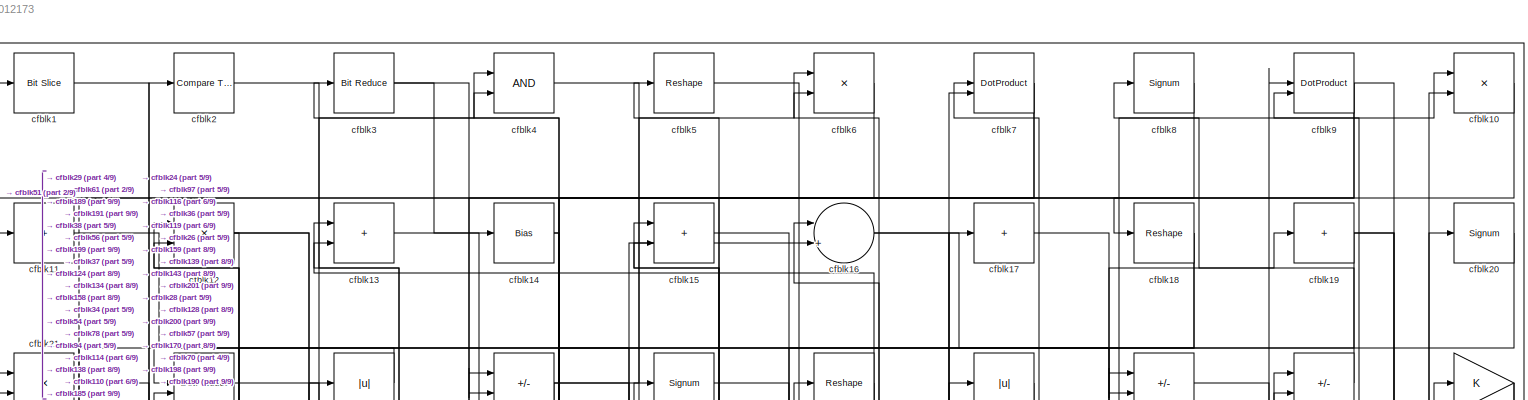
[diagram: root canvas - part 1/9, full width, top band]
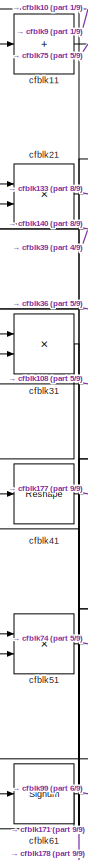
[diagram: root canvas - part 2/9, top left region]
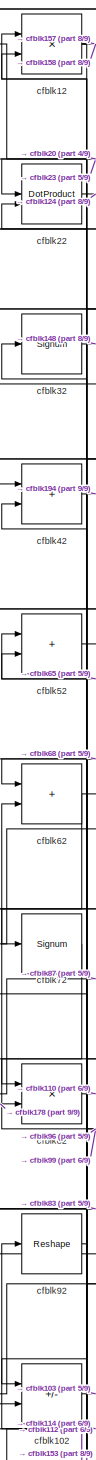
[diagram: root canvas - part 3/9, top left region]
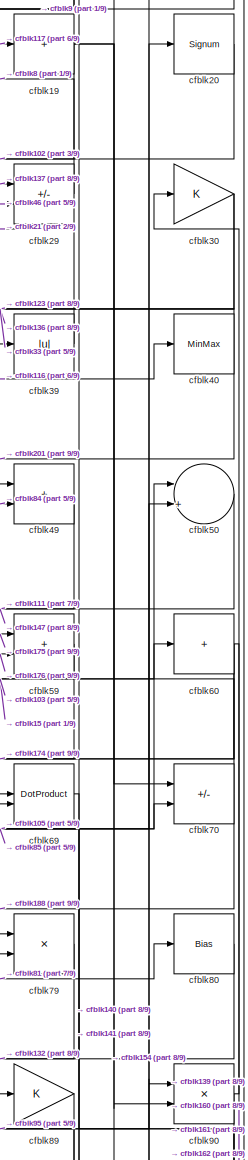
[diagram: root canvas - part 4/9, top right region]
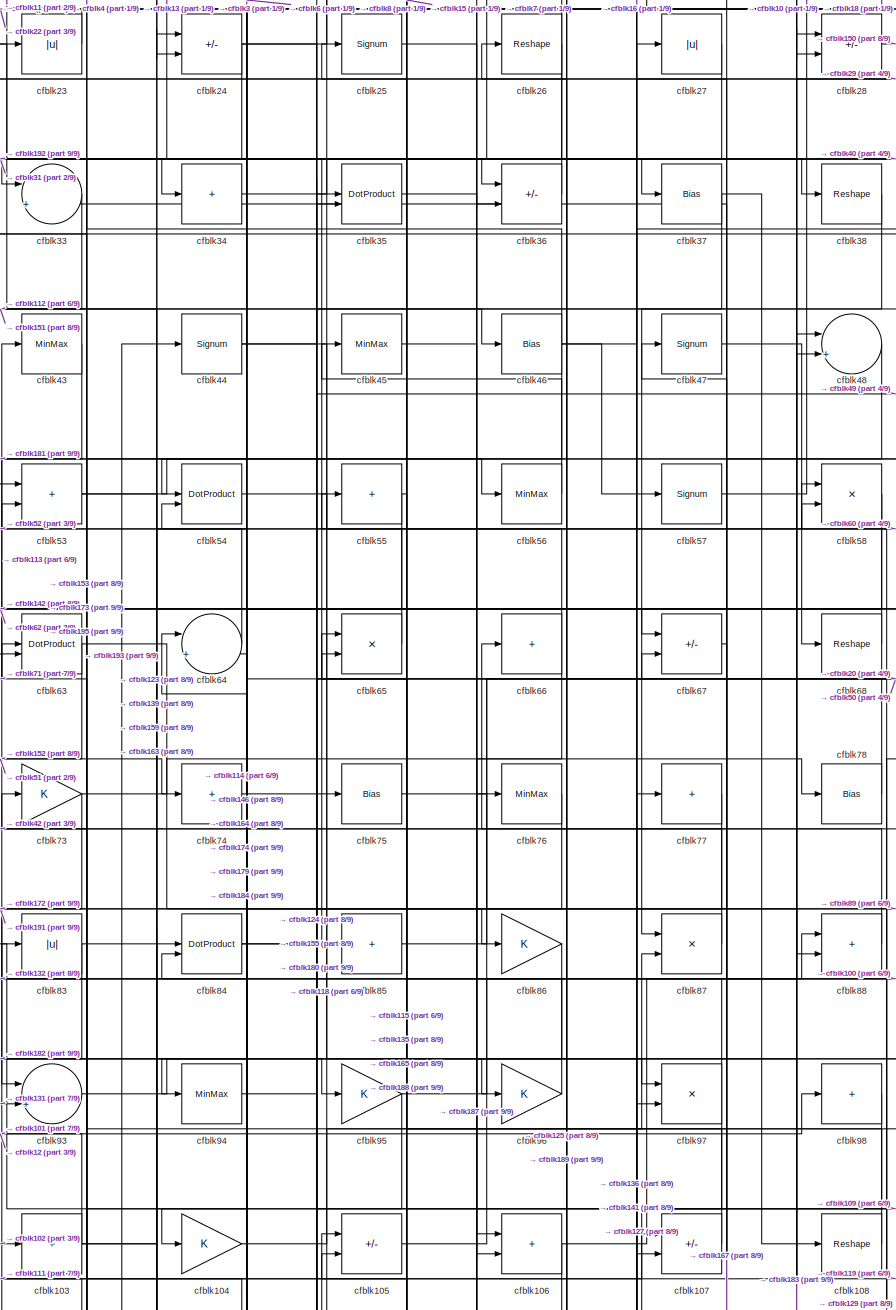
[diagram: root canvas - part 5/9, top center region]
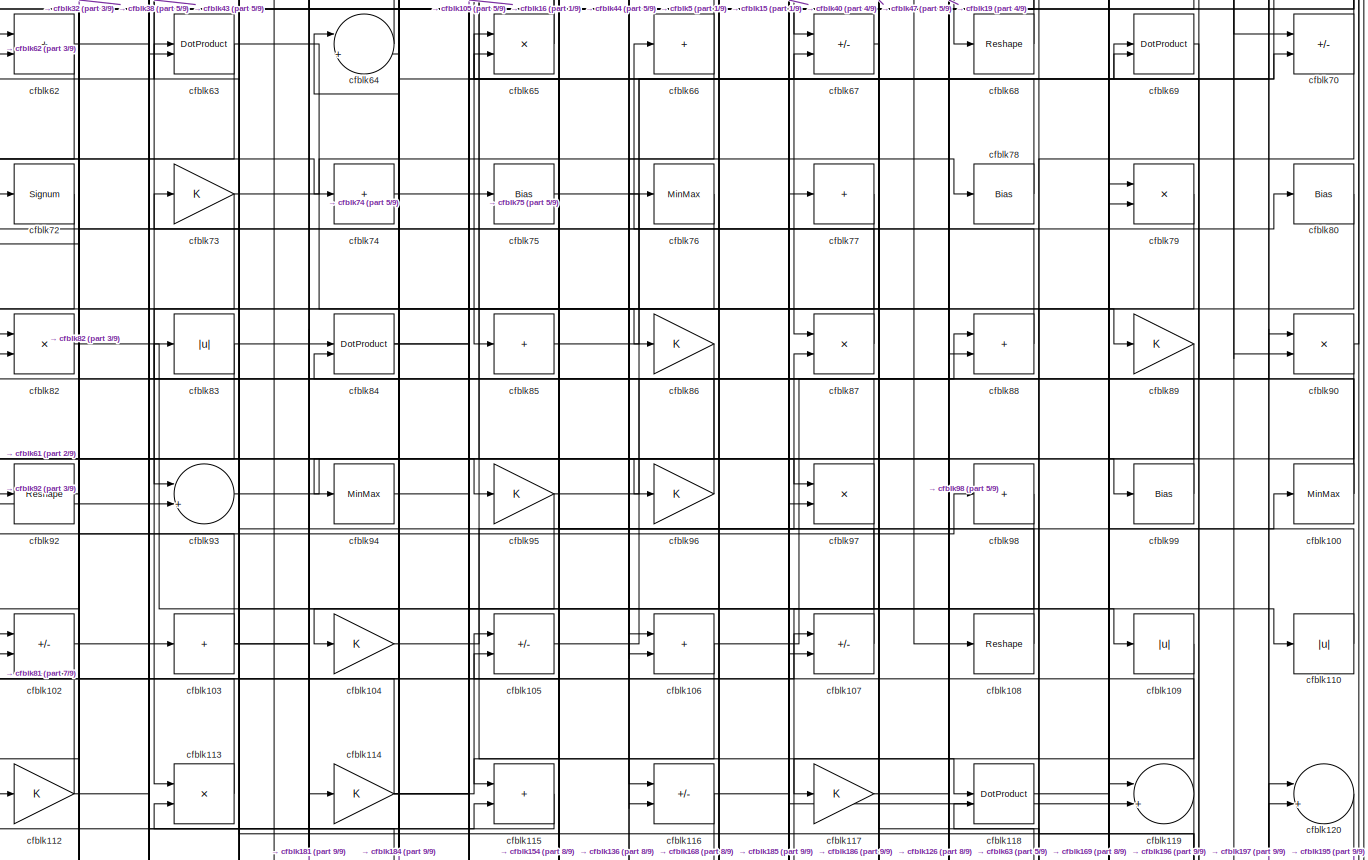
[diagram: root canvas - part 6/9, full width, middle band]
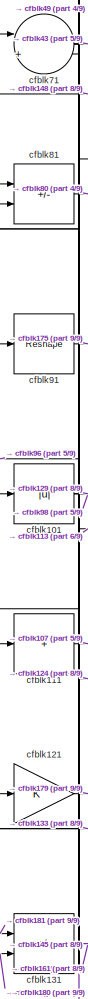
[diagram: root canvas - part 7/9, middle left region]
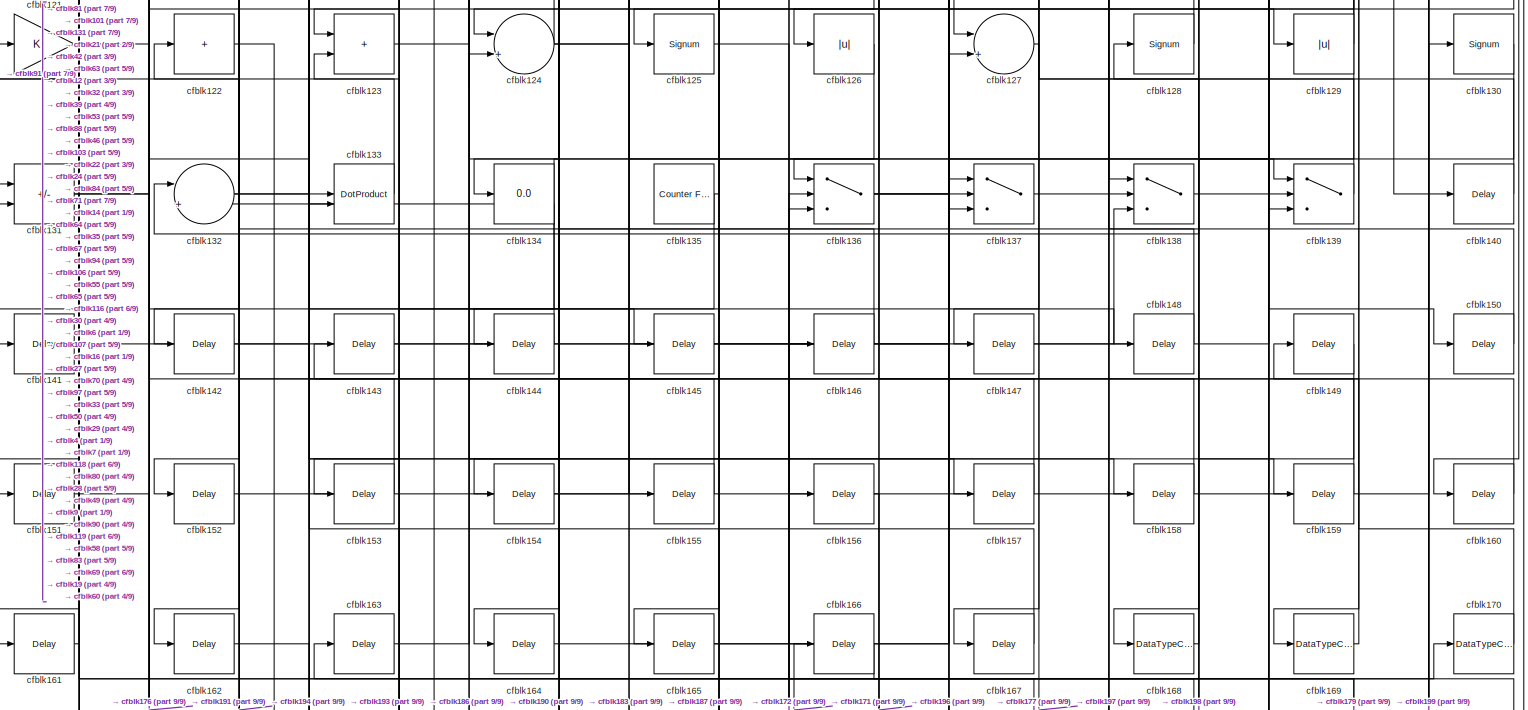
[diagram: root canvas - part 8/9, full width, bottom band]
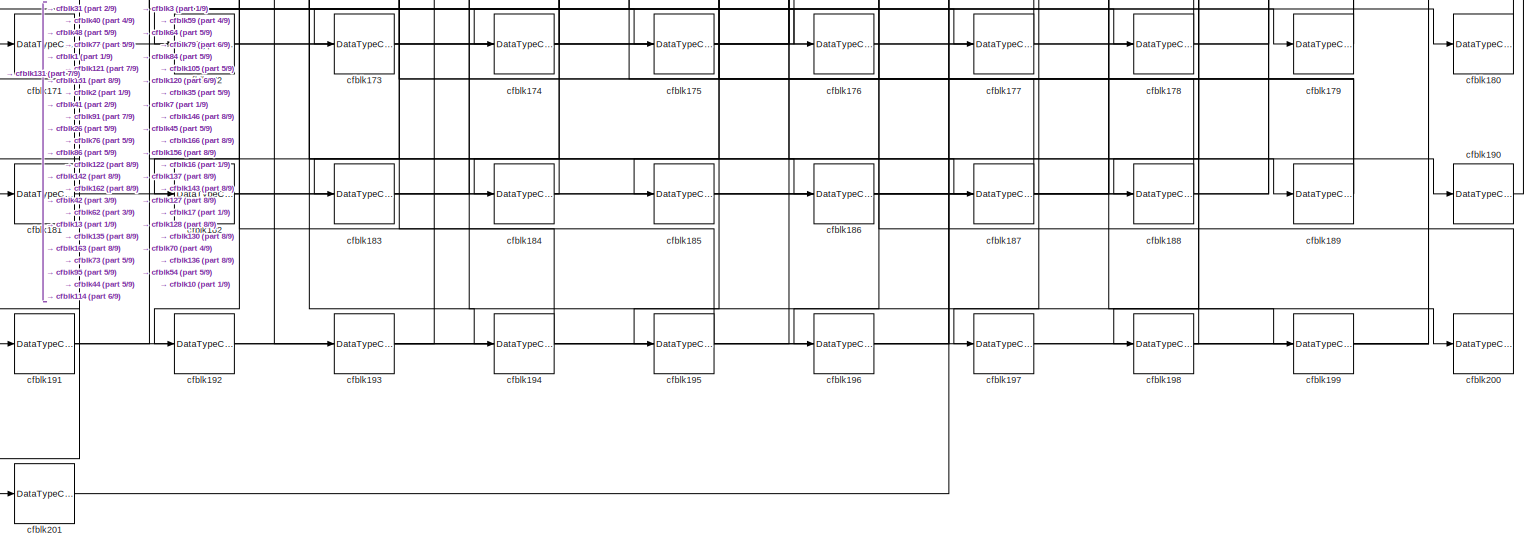
[diagram: root canvas - part 9/9, full width, bottom band]
MODEL slx_19f033012173
KIND model
CONFIG AbsTol = auto
CONFIG EnableMultiTasking = off
CONFIG FixedStep = auto
CONFIG MaxStep = auto
CONFIG MinStep = auto
CONFIG RelTol = 1e-3
CONFIG SampleTimeConstraint = Unconstrained
CONFIG SolverName = VariableStepAuto
CONFIG StartTime = 0.0
CONFIG StopTime = 10.0
BLOCK [Reference] cfblk1  REF=hdlsllib/Logic and Bit
Operations/Bit Slice
  SourceBlock = hdlsllib/Logic and Bit\nOperations/Bit Slice
  SourceType = Bit Slice
BLOCK [Product] cfblk10
  Inputs = */
  RndMeth = Zero
  SaturateOnIntegerOverflow = on
BLOCK [MinMax] cfblk100
BLOCK [Abs] cfblk101
  SaturateOnIntegerOverflow = off
BLOCK [Sum] cfblk102
  IconShape = rectangular
  Inputs = +-
BLOCK [Sum] cfblk103
  IconShape = rectangular
  Inputs = +
BLOCK [Gain] cfblk104
BLOCK [Sum] cfblk105
  IconShape = rectangular
  Inputs = +-
BLOCK [Sum] cfblk106
  IconShape = rectangular
BLOCK [Sum] cfblk107
  IconShape = rectangular
  Inputs = +-
BLOCK [Reshape] cfblk108
BLOCK [Abs] cfblk109
  SaturateOnIntegerOverflow = off
BLOCK [Sum] cfblk11
  IconShape = rectangular
  Inputs = +
BLOCK [Abs] cfblk110
  SaturateOnIntegerOverflow = off
BLOCK [Sum] cfblk111
  IconShape = rectangular
  Inputs = +
BLOCK [Gain] cfblk112
BLOCK [Product] cfblk113
  Inputs = */
  RndMeth = Zero
  SaturateOnIntegerOverflow = on
BLOCK [Gain] cfblk114
BLOCK [Sum] cfblk115
  IconShape = rectangular
BLOCK [Sum] cfblk116
  IconShape = rectangular
  Inputs = +-
BLOCK [Gain] cfblk117
BLOCK [DotProduct] cfblk118
  OutDataTypeStr = Inherit: Inherit via internal rule
BLOCK [Sum] cfblk119
  Inputs = |++
BLOCK [Product] cfblk12
  Inputs = */
  RndMeth = Zero
  SaturateOnIntegerOverflow = on
BLOCK [Sum] cfblk120
  Inputs = |++
BLOCK [Gain] cfblk121
BLOCK [Sum] cfblk122
  IconShape = rectangular
  Inputs = +
BLOCK [Sum] cfblk123
  IconShape = rectangular
BLOCK [Sum] cfblk124
  Inputs = |++
BLOCK [Signum] cfblk125
BLOCK [Abs] cfblk126
  SaturateOnIntegerOverflow = off
BLOCK [Sum] cfblk127
  Inputs = |++
BLOCK [Signum] cfblk128
BLOCK [Abs] cfblk129
  SaturateOnIntegerOverflow = off
BLOCK [Sum] cfblk13
  IconShape = rectangular
BLOCK [Signum] cfblk130
BLOCK [Sum] cfblk131
  IconShape = rectangular
  Inputs = +-
BLOCK [Sum] cfblk132
  Inputs = |++
BLOCK [DotProduct] cfblk133
  OutDataTypeStr = Inherit: Inherit via internal rule
BLOCK [Display] cfblk134
  Decimation = 1
BLOCK [Reference] cfblk135  REF=hdlsllib/Sources/Counter
Free-Running
  SourceBlock = hdlsllib/Sources/Counter\nFree-Running
  SourceType = Counter Free-Running
BLOCK [Switch] cfblk136
  InputSameDT = off
  SaturateOnIntegerOverflow = off
BLOCK [Switch] cfblk137
  InputSameDT = off
  SaturateOnIntegerOverflow = off
BLOCK [Switch] cfblk138
  InputSameDT = off
  SaturateOnIntegerOverflow = off
BLOCK [Switch] cfblk139
  InputSameDT = off
  SaturateOnIntegerOverflow = off
BLOCK [Bias] cfblk14
  Bias = 0.0
  SaturateOnIntegerOverflow = off
BLOCK [Delay] cfblk140
  InputPortMap = u0
  SampleTime = 1
BLOCK [Delay] cfblk141
  InputPortMap = u0
  SampleTime = 1
BLOCK [Delay] cfblk142
  InputPortMap = u0
  SampleTime = 1
BLOCK [Delay] cfblk143
  InputPortMap = u0
  SampleTime = 1
BLOCK [Delay] cfblk144
  InputPortMap = u0
  SampleTime = 1
BLOCK [Delay] cfblk145
  InputPortMap = u0
  SampleTime = 1
BLOCK [Delay] cfblk146
  InputPortMap = u0
  SampleTime = 1
BLOCK [Delay] cfblk147
  InputPortMap = u0
  SampleTime = 1
BLOCK [Delay] cfblk148
  InputPortMap = u0
  SampleTime = 1
BLOCK [Delay] cfblk149
  InputPortMap = u0
  SampleTime = 1
BLOCK [Sum] cfblk15
  IconShape = rectangular
BLOCK [Delay] cfblk150
  InputPortMap = u0
  SampleTime = 1
BLOCK [Delay] cfblk151
  InputPortMap = u0
  SampleTime = 1
BLOCK [Delay] cfblk152
  InputPortMap = u0
  SampleTime = 1
BLOCK [Delay] cfblk153
  InputPortMap = u0
  SampleTime = 1
BLOCK [Delay] cfblk154
  InputPortMap = u0
  SampleTime = 1
BLOCK [Delay] cfblk155
  InputPortMap = u0
  SampleTime = 1
BLOCK [Delay] cfblk156
  InputPortMap = u0
  SampleTime = 1
BLOCK [Delay] cfblk157
  InputPortMap = u0
  SampleTime = 1
BLOCK [Delay] cfblk158
  InputPortMap = u0
  SampleTime = 1
BLOCK [Delay] cfblk159
  InputPortMap = u0
  SampleTime = 1
BLOCK [Sum] cfblk16
  Inputs = |++
BLOCK [Delay] cfblk160
  InputPortMap = u0
  SampleTime = 1
BLOCK [Delay] cfblk161
  InputPortMap = u0
  SampleTime = 1
BLOCK [Delay] cfblk162
  InputPortMap = u0
  SampleTime = 1
BLOCK [Delay] cfblk163
  InputPortMap = u0
  SampleTime = 1
BLOCK [Delay] cfblk164
  InputPortMap = u0
  SampleTime = 1
BLOCK [Delay] cfblk165
  InputPortMap = u0
  SampleTime = 1
BLOCK [Delay] cfblk166
  InputPortMap = u0
  SampleTime = 1
BLOCK [Delay] cfblk167
  InputPortMap = u0
  SampleTime = 1
BLOCK [DataTypeConversion] cfblk168
  OutDataTypeStr = uint8
  RndMeth = Floor
  SaturateOnIntegerOverflow = off
BLOCK [DataTypeConversion] cfblk169
  OutDataTypeStr = uint8
  RndMeth = Floor
  SaturateOnIntegerOverflow = off
BLOCK [Sum] cfblk17
  IconShape = rectangular
  Inputs = +
BLOCK [DataTypeConversion] cfblk170
  OutDataTypeStr = uint8
  RndMeth = Floor
  SaturateOnIntegerOverflow = off
BLOCK [DataTypeConversion] cfblk171
  OutDataTypeStr = uint8
  RndMeth = Floor
  SaturateOnIntegerOverflow = off
BLOCK [DataTypeConversion] cfblk172
  OutDataTypeStr = uint8
  RndMeth = Floor
  SaturateOnIntegerOverflow = off
BLOCK [DataTypeConversion] cfblk173
  OutDataTypeStr = uint8
  RndMeth = Floor
  SaturateOnIntegerOverflow = off
BLOCK [DataTypeConversion] cfblk174
  OutDataTypeStr = uint8
  RndMeth = Floor
  SaturateOnIntegerOverflow = off
BLOCK [DataTypeConversion] cfblk175
  OutDataTypeStr = uint8
  RndMeth = Floor
  SaturateOnIntegerOverflow = off
BLOCK [DataTypeConversion] cfblk176
  OutDataTypeStr = uint8
  RndMeth = Floor
  SaturateOnIntegerOverflow = off
BLOCK [DataTypeConversion] cfblk177
  OutDataTypeStr = uint8
  RndMeth = Floor
  SaturateOnIntegerOverflow = off
BLOCK [DataTypeConversion] cfblk178
  OutDataTypeStr = uint8
  RndMeth = Floor
  SaturateOnIntegerOverflow = off
BLOCK [DataTypeConversion] cfblk179
  RndMeth = Floor
  SaturateOnIntegerOverflow = off
BLOCK [Reshape] cfblk18
BLOCK [DataTypeConversion] cfblk180
  OutDataTypeStr = uint8
  RndMeth = Floor
  SaturateOnIntegerOverflow = off
BLOCK [DataTypeConversion] cfblk181
  RndMeth = Floor
  SaturateOnIntegerOverflow = off
BLOCK [DataTypeConversion] cfblk182
  OutDataTypeStr = uint8
  RndMeth = Floor
  SaturateOnIntegerOverflow = off
BLOCK [DataTypeConversion] cfblk183
  OutDataTypeStr = uint8
  RndMeth = Floor
  SaturateOnIntegerOverflow = off
BLOCK [DataTypeConversion] cfblk184
  OutDataTypeStr = uint8
  RndMeth = Floor
  SaturateOnIntegerOverflow = off
BLOCK [DataTypeConversion] cfblk185
  OutDataTypeStr = uint8
  RndMeth = Floor
  SaturateOnIntegerOverflow = off
BLOCK [DataTypeConversion] cfblk186
  OutDataTypeStr = uint8
  RndMeth = Floor
  SaturateOnIntegerOverflow = off
BLOCK [DataTypeConversion] cfblk187
  OutDataTypeStr = uint8
  RndMeth = Floor
  SaturateOnIntegerOverflow = off
BLOCK [DataTypeConversion] cfblk188
  OutDataTypeStr = uint8
  RndMeth = Floor
  SaturateOnIntegerOverflow = off
BLOCK [DataTypeConversion] cfblk189
  RndMeth = Floor
  SaturateOnIntegerOverflow = off
BLOCK [Sum] cfblk19
  IconShape = rectangular
  Inputs = +
BLOCK [DataTypeConversion] cfblk190
  OutDataTypeStr = uint8
  RndMeth = Floor
  SaturateOnIntegerOverflow = off
BLOCK [DataTypeConversion] cfblk191
  RndMeth = Floor
  SaturateOnIntegerOverflow = off
BLOCK [DataTypeConversion] cfblk192
  OutDataTypeStr = uint8
  RndMeth = Floor
  SaturateOnIntegerOverflow = off
BLOCK [DataTypeConversion] cfblk193
  RndMeth = Floor
  SaturateOnIntegerOverflow = off
BLOCK [DataTypeConversion] cfblk194
  OutDataTypeStr = uint8
  RndMeth = Floor
  SaturateOnIntegerOverflow = off
BLOCK [DataTypeConversion] cfblk195
  OutDataTypeStr = uint8
  RndMeth = Floor
  SaturateOnIntegerOverflow = off
BLOCK [DataTypeConversion] cfblk196
  OutDataTypeStr = uint8
  RndMeth = Floor
  SaturateOnIntegerOverflow = off
BLOCK [DataTypeConversion] cfblk197
  OutDataTypeStr = uint8
  RndMeth = Floor
  SaturateOnIntegerOverflow = off
BLOCK [DataTypeConversion] cfblk198
  RndMeth = Floor
  SaturateOnIntegerOverflow = off
BLOCK [DataTypeConversion] cfblk199
  OutDataTypeStr = uint8
  RndMeth = Floor
  SaturateOnIntegerOverflow = off
BLOCK [Reference] cfblk2  REF=hdlsllib/Logic and Bit
Operations/Compare
To Zero
  SourceBlock = hdlsllib/Logic and Bit\nOperations/Compare\nTo Zero
  SourceType = Compare To Zero
BLOCK [Signum] cfblk20
BLOCK [DataTypeConversion] cfblk200
  OutDataTypeStr = uint8
  RndMeth = Floor
  SaturateOnIntegerOverflow = off
BLOCK [DataTypeConversion] cfblk201
  OutDataTypeStr = uint8
  RndMeth = Floor
  SaturateOnIntegerOverflow = off
BLOCK [Product] cfblk21
  Inputs = */
  RndMeth = Zero
  SaturateOnIntegerOverflow = on
BLOCK [DotProduct] cfblk22
  OutDataTypeStr = Inherit: Inherit via internal rule
BLOCK [Abs] cfblk23
  SaturateOnIntegerOverflow = off
BLOCK [Sum] cfblk24
  IconShape = rectangular
  Inputs = +-
BLOCK [Signum] cfblk25
BLOCK [Reshape] cfblk26
BLOCK [Abs] cfblk27
  SaturateOnIntegerOverflow = off
BLOCK [Sum] cfblk28
  IconShape = rectangular
  Inputs = +-
BLOCK [Sum] cfblk29
  IconShape = rectangular
  Inputs = +-
BLOCK [Reference] cfblk3  REF=hdlsllib/Logic and Bit
Operations/Bit Reduce
  SourceBlock = hdlsllib/Logic and Bit\nOperations/Bit Reduce
  SourceType = Bit Reduce
BLOCK [Gain] cfblk30
BLOCK [Product] cfblk31
  Inputs = */
  RndMeth = Zero
  SaturateOnIntegerOverflow = on
BLOCK [Signum] cfblk32
BLOCK [Sum] cfblk33
  Inputs = |++
BLOCK [Sum] cfblk34
  IconShape = rectangular
  Inputs = +
BLOCK [DotProduct] cfblk35
  OutDataTypeStr = Inherit: Inherit via internal rule
BLOCK [Sum] cfblk36
  IconShape = rectangular
  Inputs = +-
BLOCK [Bias] cfblk37
  Bias = 0.0
  SaturateOnIntegerOverflow = off
BLOCK [Reshape] cfblk38
BLOCK [Abs] cfblk39
  SaturateOnIntegerOverflow = off
BLOCK [Logic] cfblk4
  AllPortsSameDT = off
  OutDataTypeStr = boolean
BLOCK [MinMax] cfblk40
BLOCK [Reshape] cfblk41
BLOCK [Sum] cfblk42
  IconShape = rectangular
BLOCK [MinMax] cfblk43
BLOCK [Signum] cfblk44
BLOCK [MinMax] cfblk45
BLOCK [Bias] cfblk46
  Bias = 0.0
  SaturateOnIntegerOverflow = off
BLOCK [Signum] cfblk47
BLOCK [Sum] cfblk48
  Inputs = |++
BLOCK [Sum] cfblk49
  IconShape = rectangular
BLOCK [Reshape] cfblk5
BLOCK [Sum] cfblk50
  Inputs = |++
BLOCK [Product] cfblk51
  Inputs = */
  RndMeth = Zero
  SaturateOnIntegerOverflow = on
BLOCK [Sum] cfblk52
  IconShape = rectangular
BLOCK [Sum] cfblk53
  IconShape = rectangular
BLOCK [DotProduct] cfblk54
  OutDataTypeStr = Inherit: Inherit via internal rule
BLOCK [Sum] cfblk55
  IconShape = rectangular
  Inputs = +
BLOCK [MinMax] cfblk56
BLOCK [Signum] cfblk57
BLOCK [Product] cfblk58
  Inputs = */
  RndMeth = Zero
  SaturateOnIntegerOverflow = on
BLOCK [Sum] cfblk59
  IconShape = rectangular
BLOCK [Product] cfblk6
  Inputs = */
  RndMeth = Zero
  SaturateOnIntegerOverflow = on
BLOCK [Sum] cfblk60
  IconShape = rectangular
  Inputs = +
BLOCK [Signum] cfblk61
BLOCK [Sum] cfblk62
  IconShape = rectangular
BLOCK [DotProduct] cfblk63
  OutDataTypeStr = Inherit: Inherit via internal rule
BLOCK [Sum] cfblk64
  Inputs = |++
BLOCK [Product] cfblk65
  Inputs = */
  RndMeth = Zero
  SaturateOnIntegerOverflow = on
BLOCK [Sum] cfblk66
  IconShape = rectangular
  Inputs = +
BLOCK [Sum] cfblk67
  IconShape = rectangular
  Inputs = +-
BLOCK [Reshape] cfblk68
BLOCK [DotProduct] cfblk69
  OutDataTypeStr = Inherit: Inherit via internal rule
BLOCK [DotProduct] cfblk7
  OutDataTypeStr = Inherit: Inherit via internal rule
BLOCK [Sum] cfblk70
  IconShape = rectangular
  Inputs = +-
BLOCK [Sum] cfblk71
  Inputs = |++
BLOCK [Signum] cfblk72
BLOCK [Gain] cfblk73
BLOCK [Sum] cfblk74
  IconShape = rectangular
  Inputs = +
BLOCK [Bias] cfblk75
  Bias = 0.0
  SaturateOnIntegerOverflow = off
BLOCK [MinMax] cfblk76
BLOCK [Sum] cfblk77
  IconShape = rectangular
  Inputs = +
BLOCK [Bias] cfblk78
  Bias = 0.0
  SaturateOnIntegerOverflow = off
BLOCK [Product] cfblk79
  Inputs = */
  RndMeth = Zero
  SaturateOnIntegerOverflow = on
BLOCK [Signum] cfblk8
BLOCK [Bias] cfblk80
  Bias = 0.0
  SaturateOnIntegerOverflow = off
BLOCK [Sum] cfblk81
  IconShape = rectangular
  Inputs = +-
BLOCK [Product] cfblk82
  Inputs = */
  RndMeth = Zero
  SaturateOnIntegerOverflow = on
BLOCK [Abs] cfblk83
  SaturateOnIntegerOverflow = off
BLOCK [DotProduct] cfblk84
  OutDataTypeStr = Inherit: Inherit via internal rule
BLOCK [Sum] cfblk85
  IconShape = rectangular
  Inputs = +
BLOCK [Gain] cfblk86
BLOCK [Product] cfblk87
  Inputs = */
  RndMeth = Zero
  SaturateOnIntegerOverflow = on
BLOCK [Sum] cfblk88
  IconShape = rectangular
BLOCK [Gain] cfblk89
BLOCK [DotProduct] cfblk9
  OutDataTypeStr = Inherit: Inherit via internal rule
BLOCK [Product] cfblk90
  Inputs = */
  RndMeth = Zero
  SaturateOnIntegerOverflow = on
BLOCK [Reshape] cfblk91
BLOCK [Reshape] cfblk92
BLOCK [Sum] cfblk93
  Inputs = |++
BLOCK [MinMax] cfblk94
BLOCK [Gain] cfblk95
BLOCK [Gain] cfblk96
BLOCK [Product] cfblk97
  Inputs = */
  RndMeth = Zero
  SaturateOnIntegerOverflow = on
BLOCK [Sum] cfblk98
  IconShape = rectangular
  Inputs = +
BLOCK [Bias] cfblk99
  Bias = 0.0
  SaturateOnIntegerOverflow = off
NET cfblk100:1 -> cfblk47:1, cfblk69:1
NET cfblk101:1 -> cfblk129:1, cfblk98:1
LINE cfblk102:1 -> cfblk103:1
NET cfblk103:1 -> cfblk12:1, cfblk159:1, cfblk60:1
LINE cfblk104:1 -> cfblk87:2
LINE cfblk105:1 -> cfblk50:1
NET cfblk106:1 -> cfblk125:1, cfblk28:1
LINE cfblk107:1 -> cfblk65:1
LINE cfblk108:1 -> cfblk31:2
LINE cfblk109:1 -> cfblk117:1
LINE cfblk10:1 -> cfblk61:1
LINE cfblk110:1 -> cfblk5:1
LINE cfblk111:1 -> cfblk107:1
NET cfblk112:1 -> cfblk115:2, cfblk92:1
LINE cfblk113:1 -> cfblk81:1
NET cfblk114:1 -> cfblk105:1, cfblk16:2, cfblk32:1, cfblk69:2
LINE cfblk115:1 -> cfblk113:2
NET cfblk116:1 -> cfblk154:1, cfblk40:1
LINE cfblk117:1 -> cfblk19:1
LINE cfblk118:1 -> cfblk100:1
NET cfblk119:1 -> cfblk126:1, cfblk63:1
LINE cfblk11:1 -> cfblk75:1
LINE cfblk120:1 -> cfblk195:1
LINE cfblk121:1 -> cfblk179:1
LINE cfblk122:1 -> cfblk193:1
LINE cfblk123:1 -> cfblk24:1
NET cfblk124:1 -> cfblk137:2, cfblk67:2, cfblk71:2
LINE cfblk125:1 -> cfblk156:1
LINE cfblk126:1 -> cfblk144:1
LINE cfblk127:1 -> cfblk197:1
LINE cfblk128:1 -> cfblk7:1
NET cfblk129:1 -> cfblk137:3, cfblk58:1, cfblk83:1
NET cfblk12:1 -> cfblk157:1, cfblk158:1, cfblk72:1
LINE cfblk130:1 -> cfblk198:1
NET cfblk131:1 -> cfblk145:1, cfblk93:2
NET cfblk132:1 -> cfblk39:1, cfblk88:1
LINE cfblk133:1 -> cfblk91:1
NET cfblk135:1 -> cfblk183:1, cfblk65:2
NET cfblk136:1 -> cfblk119:2, cfblk27:1, cfblk70:2
LINE cfblk137:1 -> cfblk29:1
LINE cfblk138:1 -> cfblk9:1
LINE cfblk139:1 -> cfblk33:2
LINE cfblk13:1 -> cfblk37:1
LINE cfblk140:1 -> cfblk21:1
LINE cfblk141:1 -> cfblk107:2
LINE cfblk142:1 -> cfblk186:1
LINE cfblk143:1 -> cfblk7:2
LINE cfblk144:1 -> cfblk132:2
LINE cfblk145:1 -> cfblk138:3
LINE cfblk146:1 -> cfblk64:1
LINE cfblk147:1 -> cfblk49:1
LINE cfblk148:1 -> cfblk71:1
LINE cfblk149:1 -> cfblk168:1
NET cfblk14:1 -> cfblk124:1, cfblk134:1
LINE cfblk150:1 -> cfblk138:2
LINE cfblk151:1 -> cfblk176:1
LINE cfblk152:1 -> cfblk35:2
LINE cfblk153:1 -> cfblk22:2
LINE cfblk154:1 -> cfblk90:1
LINE cfblk155:1 -> cfblk53:1
LINE cfblk156:1 -> cfblk196:1
LINE cfblk157:1 -> cfblk42:1
LINE cfblk158:1 -> cfblk4:2
LINE cfblk159:1 -> cfblk6:2
LINE cfblk15:1 -> cfblk116:1
LINE cfblk160:1 -> cfblk123:2
LINE cfblk161:1 -> cfblk81:2
LINE cfblk162:1 -> cfblk190:1
LINE cfblk163:1 -> cfblk84:1
LINE cfblk164:1 -> cfblk127:2
LINE cfblk165:1 -> cfblk97:2
LINE cfblk166:1 -> cfblk170:1
LINE cfblk167:1 -> cfblk133:1
LINE cfblk168:1 -> cfblk118:2
LINE cfblk169:1 -> cfblk149:1
NET cfblk16:1 -> cfblk139:1, cfblk28:2
LINE cfblk170:1 -> cfblk9:2
LINE cfblk171:1 -> cfblk166:1
LINE cfblk172:1 -> cfblk146:1
LINE cfblk173:1 -> cfblk76:1
LINE cfblk174:1 -> cfblk64:2
LINE cfblk175:1 -> cfblk59:1
LINE cfblk176:1 -> cfblk59:2
LINE cfblk177:1 -> cfblk143:1
LINE cfblk178:1 -> cfblk41:1
NET cfblk179:1 -> cfblk136:2, cfblk54:2
LINE cfblk17:1 -> cfblk200:1
LINE cfblk180:1 -> cfblk121:1
NET cfblk181:1 -> cfblk114:1, cfblk131:1
LINE cfblk182:1 -> cfblk48:1
LINE cfblk183:1 -> cfblk48:2
LINE cfblk184:1 -> cfblk84:2
LINE cfblk185:1 -> cfblk79:1
LINE cfblk186:1 -> cfblk79:2
LINE cfblk187:1 -> cfblk163:1
LINE cfblk188:1 -> cfblk45:1
NET cfblk189:1 -> cfblk105:2, cfblk13:2, cfblk26:1, cfblk35:1
NET cfblk18:1 -> cfblk34:1, cfblk36:2
LINE cfblk190:1 -> cfblk1:1
NET cfblk191:1 -> cfblk137:1, cfblk2:1
LINE cfblk192:1 -> cfblk77:1
NET cfblk193:1 -> cfblk136:3, cfblk44:1
LINE cfblk194:1 -> cfblk122:1
LINE cfblk195:1 -> cfblk73:1
LINE cfblk196:1 -> cfblk120:1
LINE cfblk197:1 -> cfblk120:2
NET cfblk198:1 -> cfblk10:2, cfblk128:1
LINE cfblk199:1 -> cfblk130:1
NET cfblk19:1 -> cfblk140:1, cfblk141:1, cfblk90:2
LINE cfblk1:1 -> cfblk189:1
LINE cfblk200:1 -> cfblk16:1
LINE cfblk201:1 -> cfblk17:1
LINE cfblk20:1 -> cfblk102:1
LINE cfblk21:1 -> cfblk133:2
LINE cfblk22:1 -> cfblk124:2
LINE cfblk23:1 -> cfblk22:1
NET cfblk24:1 -> cfblk63:2, cfblk6:1, cfblk88:2
LINE cfblk25:1 -> cfblk106:1
NET cfblk26:1 -> cfblk131:2, cfblk13:1, cfblk192:1
LINE cfblk27:1 -> cfblk85:1
LINE cfblk28:1 -> cfblk150:1
LINE cfblk29:1 -> cfblk8:1
LINE cfblk2:1 -> cfblk38:1
NET cfblk30:1 -> cfblk123:1, cfblk136:1
NET cfblk31:1 -> cfblk171:1, cfblk51:1
LINE cfblk32:1 -> cfblk148:1
LINE cfblk33:1 -> cfblk151:1
LINE cfblk34:1 -> cfblk36:1
LINE cfblk35:1 -> cfblk97:1
LINE cfblk36:1 -> cfblk31:1
NET cfblk37:1 -> cfblk108:1, cfblk87:1
LINE cfblk38:1 -> cfblk112:1
LINE cfblk39:1 -> cfblk21:2
NET cfblk3:1 -> cfblk14:1, cfblk199:1
NET cfblk40:1 -> cfblk201:1, cfblk33:1
LINE cfblk41:1 -> cfblk177:1
LINE cfblk42:1 -> cfblk194:1
LINE cfblk43:1 -> cfblk113:1
NET cfblk44:1 -> cfblk118:1, cfblk46:1
LINE cfblk45:1 -> cfblk187:1
NET cfblk46:1 -> cfblk153:1, cfblk25:1, cfblk29:2, cfblk57:1
LINE cfblk47:1 -> cfblk68:1
LINE cfblk48:1 -> cfblk181:1
LINE cfblk49:1 -> cfblk111:1
LINE cfblk4:1 -> cfblk138:1
LINE cfblk50:1 -> cfblk147:1
LINE cfblk51:1 -> cfblk74:1
LINE cfblk52:1 -> cfblk23:1
NET cfblk53:1 -> cfblk56:1, cfblk67:1
LINE cfblk54:1 -> cfblk58:2
NET cfblk55:1 -> cfblk164:1, cfblk165:1
LINE cfblk56:1 -> cfblk4:1
LINE cfblk57:1 -> cfblk10:1
NET cfblk58:1 -> cfblk104:1, cfblk142:1
LINE cfblk59:1 -> cfblk174:1
LINE cfblk5:1 -> cfblk119:1
NET cfblk60:1 -> cfblk160:1, cfblk161:1, cfblk162:1
NET cfblk61:1 -> cfblk11:1, cfblk99:1
NET cfblk62:1 -> cfblk178:1, cfblk82:2
NET cfblk63:1 -> cfblk152:1, cfblk86:1
LINE cfblk64:1 -> cfblk53:2
LINE cfblk65:1 -> cfblk52:2
NET cfblk66:1 -> cfblk106:2, cfblk55:1
LINE cfblk67:1 -> cfblk167:1
LINE cfblk68:1 -> cfblk62:1
LINE cfblk69:1 -> cfblk169:1
LINE cfblk6:1 -> cfblk54:1
NET cfblk70:1 -> cfblk15:1, cfblk188:1
NET cfblk71:1 -> cfblk101:1, cfblk43:1, cfblk96:1
LINE cfblk72:1 -> cfblk82:1
NET cfblk73:1 -> cfblk78:1, cfblk93:1
LINE cfblk74:1 -> cfblk109:1
LINE cfblk75:1 -> cfblk89:1
LINE cfblk76:1 -> cfblk172:1
LINE cfblk77:1 -> cfblk191:1
LINE cfblk78:1 -> cfblk3:1
LINE cfblk79:1 -> cfblk184:1
NET cfblk7:1 -> cfblk185:1, cfblk24:2
LINE cfblk80:1 -> cfblk132:1
LINE cfblk81:1 -> cfblk80:1
LINE cfblk82:1 -> cfblk110:1
NET cfblk83:1 -> cfblk102:2, cfblk139:2
NET cfblk84:1 -> cfblk180:1, cfblk49:2
LINE cfblk85:1 -> cfblk20:1
LINE cfblk86:1 -> cfblk182:1
LINE cfblk87:1 -> cfblk42:2
LINE cfblk88:1 -> cfblk66:1
LINE cfblk89:1 -> cfblk116:2
LINE cfblk8:1 -> cfblk94:1
NET cfblk90:1 -> cfblk139:3, cfblk30:1
LINE cfblk91:1 -> cfblk175:1
LINE cfblk92:1 -> cfblk52:1
LINE cfblk93:1 -> cfblk95:1
LINE cfblk94:1 -> cfblk155:1
NET cfblk95:1 -> cfblk173:1, cfblk50:2
LINE cfblk96:1 -> cfblk12:2
NET cfblk97:1 -> cfblk127:1, cfblk15:2
LINE cfblk98:1 -> cfblk115:1
LINE cfblk99:1 -> cfblk62:2
NET cfblk9:1 -> cfblk18:1, cfblk51:2, cfblk70:1
note: NET lines group one-source signal fan-out (src -> all destinations, sorted); 1:1 wires keep LINE
